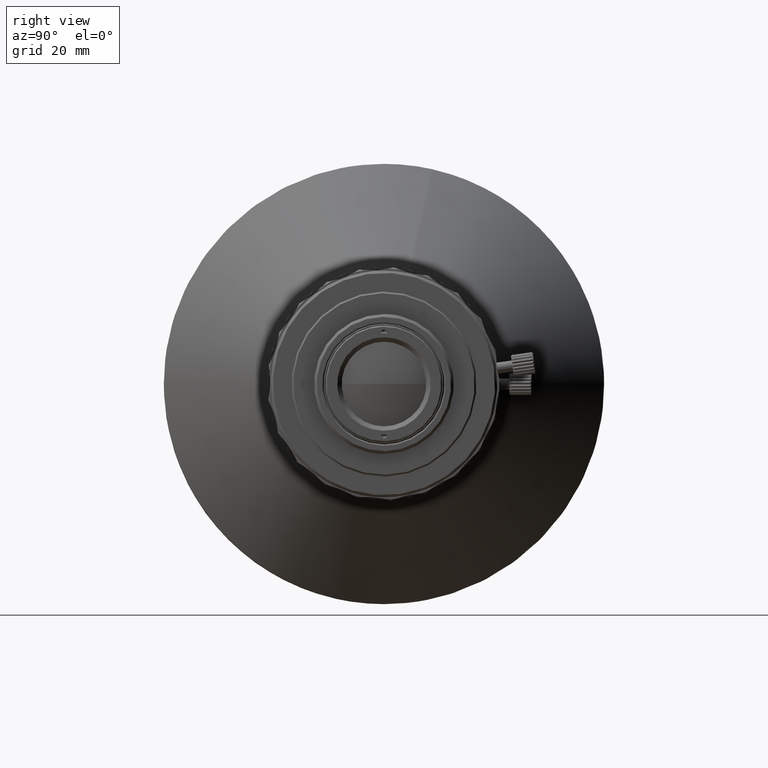
[diagram: clean part render]
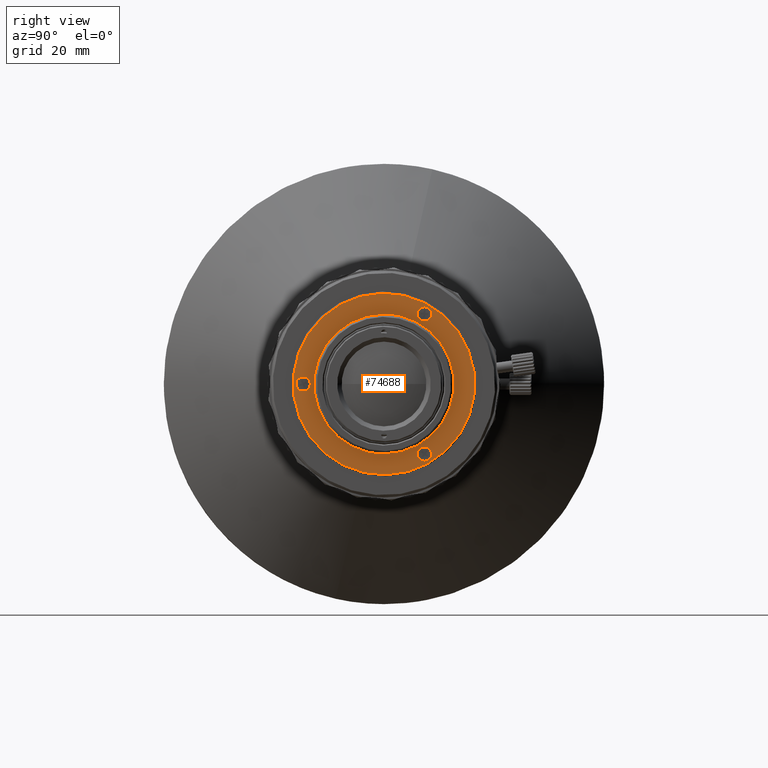
[diagram: same view with one face highlighted and labeled with its STEP entity id]
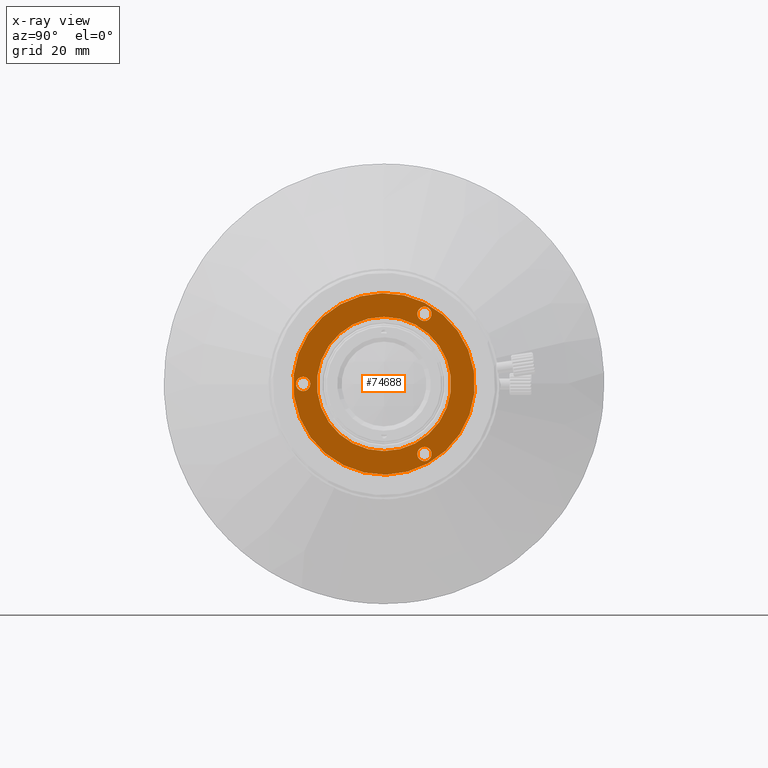
[diagram: x-ray of the same camera — body ghosted, the highlighted face saturated]
A machine part, right view. The second image highlights one B-rep face of the part: STEP entity #74688.
The next image is the same camera in x-ray: the body ghosted, the highlighted face saturated — about 0% of this face is hidden behind the body in this view.
In plain terms, the highlighted planar face has unit normal (-1, 0, 0).
Its self-contained STEP definition (entity closure, byte-faithful):
#3362 = DIRECTION ( 'NONE',  ( -1.000000000000000000, 0.000000000000000000, 0.000000000000000000 ) ) ;
#6016 = CARTESIAN_POINT ( 'NONE',  ( 52.04000000000000625, 7.350000005434019990, -12.73057343540529907 ) ) ;
#6207 = VERTEX_POINT ( 'NONE', #21701 ) ;
#7078 = AXIS2_PLACEMENT_3D ( 'NONE', #44767, #75365, #14180 ) ;
#7443 = EDGE_CURVE ( 'NONE', #6207, #33069, #54910, .T. ) ;
#7921 = DIRECTION ( 'NONE',  ( 0.000000000000000000, -3.150645465098779463E-09, -1.000000000000000000 ) ) ;
#9871 = CIRCLE ( 'NONE', #53710, 1.300000004642668960 ) ;
#10563 = EDGE_LOOP ( 'NONE', ( #53806, #10607 ) ) ;
#10607 = ORIENTED_EDGE ( 'NONE', *, *, #62849, .F. ) ;
#12676 = ORIENTED_EDGE ( 'NONE', *, *, #54453, .F. ) ;
#14041 = DIRECTION ( 'NONE',  ( 1.000000000000000000, -6.832141687856790658E-15, 2.152564510322810108E-23 ) ) ;
#14180 = DIRECTION ( 'NONE',  ( 0.000000000000000000, -4.784492763508588910E-09, -1.000000000000000000 ) ) ;
#15482 = CIRCLE ( 'NONE', #54281, 16.50000000000000000 ) ;
#15538 = PLANE ( 'NONE',  #71295 ) ;
#17130 = DIRECTION ( 'NONE',  ( 1.000000000000000000, -6.832141699019470656E-15, 3.268833033018524766E-23 ) ) ;
#18010 = DIRECTION ( 'NONE',  ( 1.000000000000000000, 5.382899514921490642E-16, -2.208101050435565324E-25 ) ) ;
#20014 = VERTEX_POINT ( 'NONE', #35941 ) ;
#20116 = CARTESIAN_POINT ( 'NONE',  ( 52.04000000000000625, 7.350000001338182543, -14.03057344004796825 ) ) ;
#20360 = AXIS2_PLACEMENT_3D ( 'NONE', #63030, #14041, #51283 ) ;
#21382 = VERTEX_POINT ( 'NONE', #55478 ) ;
#21529 = CIRCLE ( 'NONE', #25314, 1.300000004642668960 ) ;
#21541 = EDGE_LOOP ( 'NONE', ( #70970, #64025 ) ) ;
#21701 = CARTESIAN_POINT ( 'NONE',  ( 52.04000000000000625, -7.678724088678291476E-20, 12.19999999818529979 ) ) ;
#21957 = CARTESIAN_POINT ( 'NONE',  ( 52.04000000000000625, -3.621951225999745727, -16.09756097415003495 ) ) ;
#23569 = AXIS2_PLACEMENT_3D ( 'NONE', #42593, #47687, #35935 ) ;
#24126 = EDGE_CURVE ( 'NONE', #68470, #69687, #15482, .T. ) ;
#25314 = AXIS2_PLACEMENT_3D ( 'NONE', #68320, #44786, #7921 ) ;
#25628 = ORIENTED_EDGE ( 'NONE', *, *, #59263, .F. ) ;
#27424 = DIRECTION ( 'NONE',  ( 0.000000000000000000, -4.102066264314739788E-10, -1.000000000000000000 ) ) ;
#27568 = EDGE_CURVE ( 'NONE', #65454, #76973, #42153, .T. ) ;
#27613 = CARTESIAN_POINT ( 'NONE',  ( 52.04000000000000625, -14.70000000290984055, -1.300000004642669182 ) ) ;
#27706 = DIRECTION ( 'NONE',  ( 1.000000000000000000, 1.456030196565740078E-15, -2.749616283392829996E-25 ) ) ;
#27721 = FACE_BOUND ( 'NONE', #68022, .T. ) ;
#27747 = AXIS2_PLACEMENT_3D ( 'NONE', #59078, #17130, #34792 ) ;
#30252 = CARTESIAN_POINT ( 'NONE',  ( 52.04000000000000625, 1.405473197518014580E-14, -12.19999999818529979 ) ) ;
#30761 = DIRECTION ( 'NONE',  ( 1.000000000000000000, -6.832141687856790658E-15, 2.152564510322810108E-23 ) ) ;
#31177 = EDGE_CURVE ( 'NONE', #21382, #20014, #21529, .T. ) ;
#31367 = CARTESIAN_POINT ( 'NONE',  ( 52.04000000000000625, 3.621951225999771928, 16.09756097415006337 ) ) ;
#33069 = VERTEX_POINT ( 'NONE', #30252 ) ;
#34792 = DIRECTION ( 'NONE',  ( 0.000000000000000000, -4.784492763508588910E-09, -1.000000000000000000 ) ) ;
#35416 = CIRCLE ( 'NONE', #20360, 1.300000004642668960 ) ;
#35784 = AXIS2_PLACEMENT_3D ( 'NONE', #73318, #43899, #50526 ) ;
#35935 = DIRECTION ( 'NONE',  ( 0.000000000000000000, -3.150645465098779463E-09, -1.000000000000000000 ) ) ;
#35941 = CARTESIAN_POINT ( 'NONE',  ( 52.04000000000000625, 7.349999999999999645, 14.03057344004796825 ) ) ;
#36059 = CARTESIAN_POINT ( 'NONE',  ( 52.04000000000000625, -3.804886602423039920E-15, 8.881784197001249168E-15 ) ) ;
#37498 = EDGE_LOOP ( 'NONE', ( #62777, #69230 ) ) ;
#38701 = EDGE_CURVE ( 'NONE', #33069, #6207, #70839, .T. ) ;
#39963 = CARTESIAN_POINT ( 'NONE',  ( 52.04000000000000625, -3.804886602423039920E-15, 8.881784197001249168E-15 ) ) ;
#39992 = ORIENTED_EDGE ( 'NONE', *, *, #27568, .F. ) ;
#42153 = CIRCLE ( 'NONE', #7078, 1.300000004642669849 ) ;
#42593 = CARTESIAN_POINT ( 'NONE',  ( 52.04000000000000625, 7.350000005434019990, 12.73057343540529907 ) ) ;
#43395 = CIRCLE ( 'NONE', #50883, 16.50000000000000000 ) ;
#43899 = DIRECTION ( 'NONE',  ( 1.000000000000000000, 1.456030196565740078E-15, -2.749616283392829996E-25 ) ) ;
#44767 = CARTESIAN_POINT ( 'NONE',  ( 52.04000000000000625, -14.69999999668999990, 5.551115123125779744E-16 ) ) ;
#44786 = DIRECTION ( 'NONE',  ( 1.000000000000000000, -6.832141687856800124E-15, 2.152565677276805089E-23 ) ) ;
#46147 = FACE_BOUND ( 'NONE', #76524, .T. ) ;
#46171 = CARTESIAN_POINT ( 'NONE',  ( 52.04000000000000625, 7.350000000000000533, -11.43057343076262988 ) ) ;
#46543 = FACE_BOUND ( 'NONE', #37498, .T. ) ;
#47687 = DIRECTION ( 'NONE',  ( 1.000000000000000000, -6.832141687856800124E-15, 2.152565677276805089E-23 ) ) ;
#47787 = CIRCLE ( 'NONE', #27747, 1.300000004642669849 ) ;
#48202 = DIRECTION ( 'NONE',  ( 0.000000000000000000, -4.102066264314739788E-10, -1.000000000000000000 ) ) ;
#49244 = EDGE_CURVE ( 'NONE', #69687, #68470, #43395, .T. ) ;
#49823 = ORIENTED_EDGE ( 'NONE', *, *, #31177, .F. ) ;
#50526 = DIRECTION ( 'NONE',  ( 0.000000000000000000, -1.888433557132399942E-10, -1.000000000000000000 ) ) ;
#50883 = AXIS2_PLACEMENT_3D ( 'NONE', #36059, #18010, #48202 ) ;
#51283 = DIRECTION ( 'NONE',  ( 0.000000000000000000, -3.150644130696110725E-09, -1.000000000000000000 ) ) ;
#51632 = DIRECTION ( 'NONE',  ( 0.000000000000000000, 0.000000000000000000, 1.000000000000000000 ) ) ;
#53217 = EDGE_CURVE ( 'NONE', #74149, #59290, #9871, .T. ) ;
#53710 = AXIS2_PLACEMENT_3D ( 'NONE', #6016, #30761, #54262 ) ;
#53806 = ORIENTED_EDGE ( 'NONE', *, *, #53217, .F. ) ;
#54262 = DIRECTION ( 'NONE',  ( 0.000000000000000000, -3.150644130696110725E-09, -1.000000000000000000 ) ) ;
#54281 = AXIS2_PLACEMENT_3D ( 'NONE', #39963, #64642, #27424 ) ;
#54453 = EDGE_CURVE ( 'NONE', #20014, #21382, #68662, .T. ) ;
#54910 = CIRCLE ( 'NONE', #63696, 12.19999999818529979 ) ;
#55478 = CARTESIAN_POINT ( 'NONE',  ( 52.04000000000000625, 7.350000001338180766, 11.43057343076262988 ) ) ;
#57103 = CARTESIAN_POINT ( 'NONE',  ( 52.04000000000000625, -16.69800000000000040, 0.000000000000000000 ) ) ;
#59078 = CARTESIAN_POINT ( 'NONE',  ( 52.04000000000000625, -14.69999999668999990, 5.551115123125779744E-16 ) ) ;
#59263 = EDGE_CURVE ( 'NONE', #76973, #65454, #47787, .T. ) ;
#59290 = VERTEX_POINT ( 'NONE', #46171 ) ;
#62777 = ORIENTED_EDGE ( 'NONE', *, *, #7443, .F. ) ;
#62849 = EDGE_CURVE ( 'NONE', #59290, #74149, #35416, .T. ) ;
#63030 = CARTESIAN_POINT ( 'NONE',  ( 52.04000000000000625, 7.350000005434019990, -12.73057343540529907 ) ) ;
#63696 = AXIS2_PLACEMENT_3D ( 'NONE', #70434, #27706, #69645 ) ;
#64025 = ORIENTED_EDGE ( 'NONE', *, *, #49244, .T. ) ;
#64642 = DIRECTION ( 'NONE',  ( 1.000000000000000000, 5.382899514921490642E-16, -2.208101050435565324E-25 ) ) ;
#65454 = VERTEX_POINT ( 'NONE', #74362 ) ;
#68022 = EDGE_LOOP ( 'NONE', ( #49823, #12676 ) ) ;
#68320 = CARTESIAN_POINT ( 'NONE',  ( 52.04000000000000625, 7.350000005434019990, 12.73057343540529907 ) ) ;
#68470 = VERTEX_POINT ( 'NONE', #21957 ) ;
#68662 = CIRCLE ( 'NONE', #23569, 1.300000004642668960 ) ;
#68908 = FACE_OUTER_BOUND ( 'NONE', #21541, .T. ) ;
#69230 = ORIENTED_EDGE ( 'NONE', *, *, #38701, .F. ) ;
#69645 = DIRECTION ( 'NONE',  ( 0.000000000000000000, -1.888433557132399942E-10, -1.000000000000000000 ) ) ;
#69687 = VERTEX_POINT ( 'NONE', #31367 ) ;
#70434 = CARTESIAN_POINT ( 'NONE',  ( 52.04000000000000625, -1.032460164490540061E-09, 0.000000000000000000 ) ) ;
#70839 = CIRCLE ( 'NONE', #35784, 12.19999999818529979 ) ;
#70970 = ORIENTED_EDGE ( 'NONE', *, *, #24126, .T. ) ;
#71295 = AXIS2_PLACEMENT_3D ( 'NONE', #57103, #3362, #51632 ) ;
#73318 = CARTESIAN_POINT ( 'NONE',  ( 52.04000000000000625, -1.032460164490540061E-09, 0.000000000000000000 ) ) ;
#74149 = VERTEX_POINT ( 'NONE', #20116 ) ;
#74362 = CARTESIAN_POINT ( 'NONE',  ( 52.04000000000000625, -14.69999999999999929, 1.300000004642670515 ) ) ;
#74688 = ADVANCED_FACE ( 'NONE', ( #46543, #46147, #27721, #75180, #68908 ), #15538, .F. ) ;
#75180 = FACE_BOUND ( 'NONE', #10563, .T. ) ;
#75365 = DIRECTION ( 'NONE',  ( 1.000000000000000000, -6.832141699019470656E-15, 3.268833033018524766E-23 ) ) ;
#76524 = EDGE_LOOP ( 'NONE', ( #25628, #39992 ) ) ;
#76973 = VERTEX_POINT ( 'NONE', #27613 ) ;